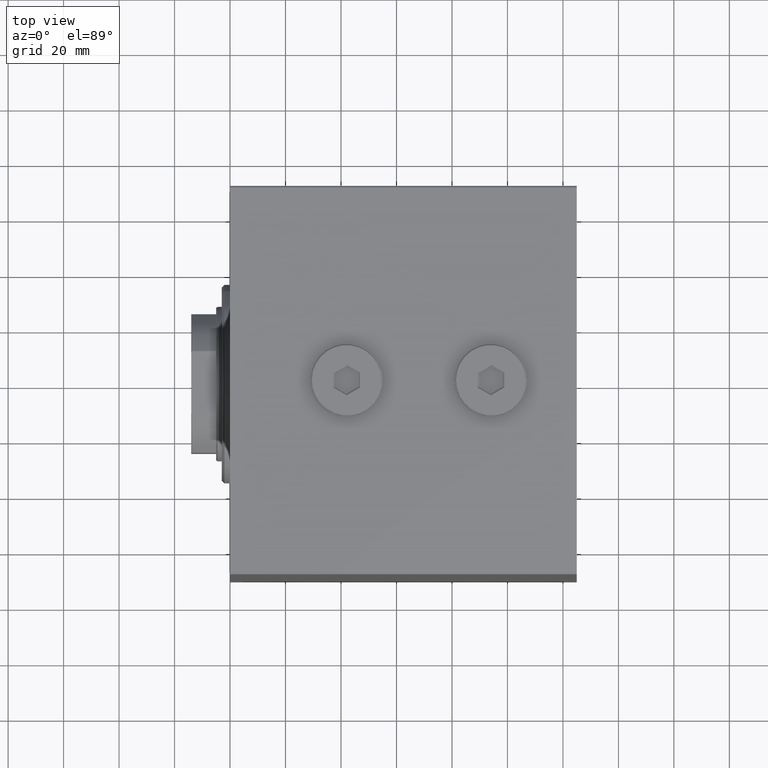
[diagram: clean part render]
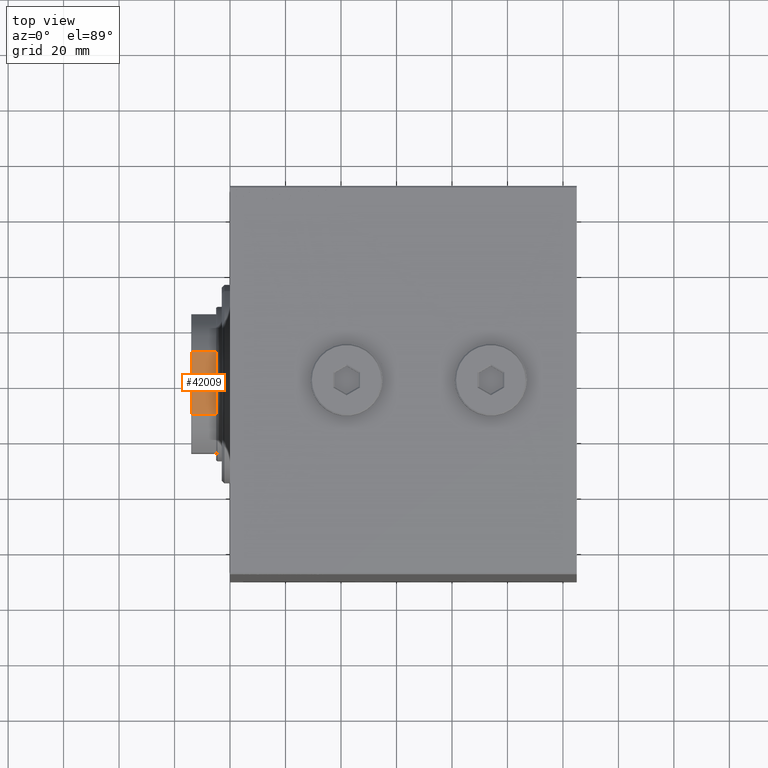
[diagram: same view with one face highlighted and labeled with its STEP entity id]
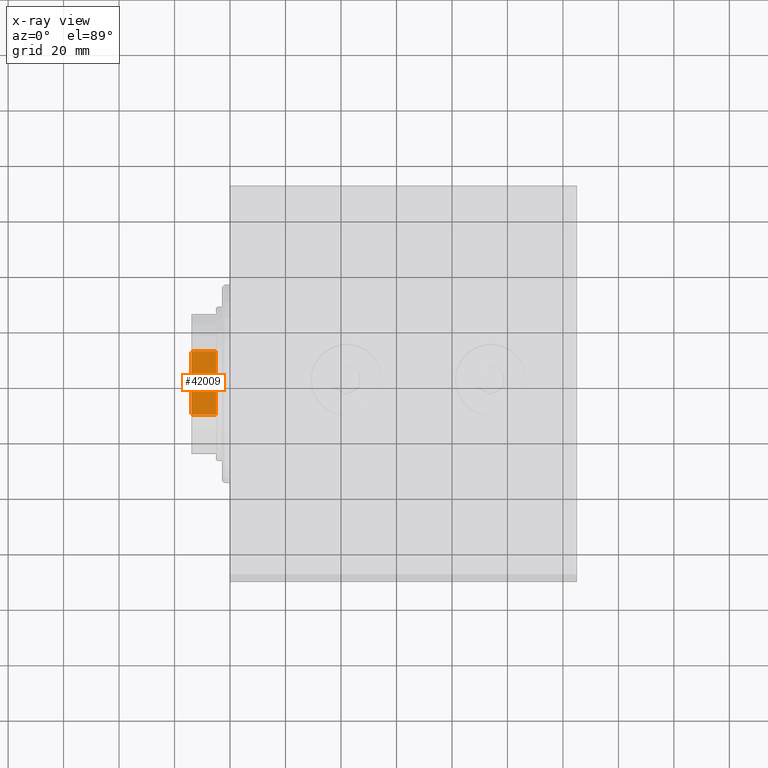
[diagram: x-ray of the same camera — body ghosted, the highlighted face saturated]
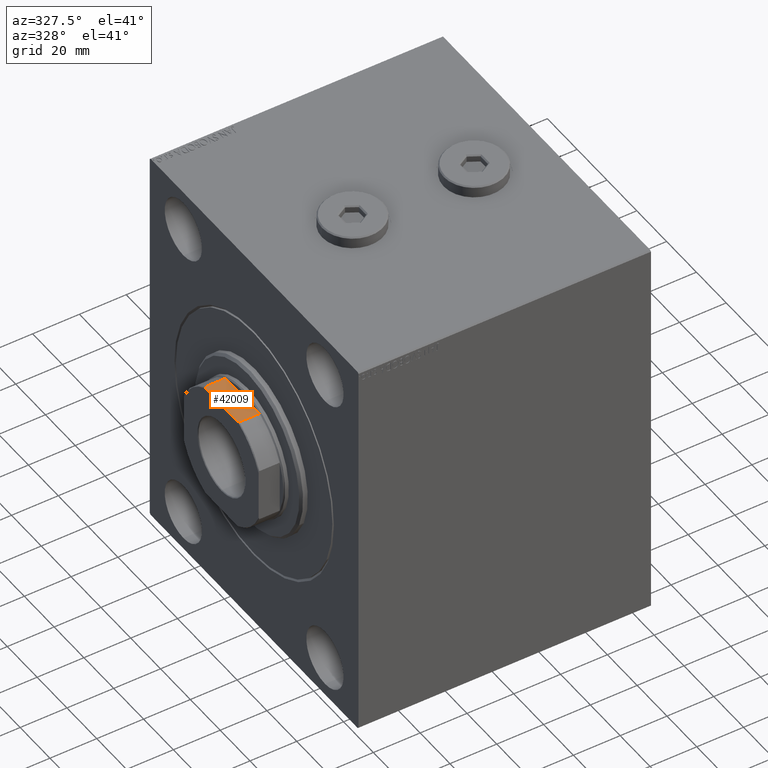
[diagram: same view with one face highlighted and labeled with its STEP entity id]
A machine part, top view. The second image highlights one B-rep face of the part: STEP entity #42009.
The next image is the same camera in x-ray: the body ghosted, the highlighted face saturated — about 0% of this face is hidden behind the body in this view.
A second angle (auxiliary view) of the same face is appended — the face is thin or edge-on in the first view.
In plain terms, the highlighted planar face has unit normal (-0, -0, -1).
Its self-contained STEP definition (entity closure, byte-faithful):
#154 = VECTOR ( 'NONE', #33292, 1000.000000000000000 ) ;
#178 = CARTESIAN_POINT ( 'NONE',  ( 24.99999999999999289, -11.45643923738961689, 64.70000000000000284 ) ) ;
#2418 = DIRECTION ( 'NONE',  ( -1.000000000000000000, -6.938893903907228378E-17, 0.000000000000000000 ) ) ;
#2845 = ORIENTED_EDGE ( 'NONE', *, *, #32141, .F. ) ;
#3743 = DIRECTION ( 'NONE',  ( -6.938893903907228378E-17, 1.000000000000000000, -0.000000000000000000 ) ) ;
#6303 = PLANE ( 'NONE',  #44744 ) ;
#6441 = ORIENTED_EDGE ( 'NONE', *, *, #10282, .T. ) ;
#7481 = CARTESIAN_POINT ( 'NONE',  ( 24.99999999999999645, 11.21071381544325973, 64.80236866784038341 ) ) ;
#8899 = CARTESIAN_POINT ( 'NONE',  ( 24.99999999999999289, -11.45643923738961689, 64.70000000000000284 ) ) ;
#10282 = EDGE_CURVE ( 'NONE', #32892, #20062, #23945, .T. ) ;
#11677 = VERTEX_POINT ( 'NONE', #17439 ) ;
#11913 = ORIENTED_EDGE ( 'NONE', *, *, #24228, .T. ) ;
#12080 = CARTESIAN_POINT ( 'NONE',  ( 24.99999999999999645, 11.45643923738960623, -0.001000000000001000089 ) ) ;
#12245 = B_SPLINE_CURVE_WITH_KNOTS ( 'NONE', 3,
 ( #31400, #37550, #30722, #178 ),
 .UNSPECIFIED., .F., .F.,
 ( 4, 4 ),
 ( 1.734723475976807094E-18, 0.0007985880942733605261 ),
 .UNSPECIFIED. ) ;
#12529 = VERTEX_POINT ( 'NONE', #41347 ) ;
#13735 = ORIENTED_EDGE ( 'NONE', *, *, #16680, .F. ) ;
#15579 = CARTESIAN_POINT ( 'NONE',  ( 24.99999999999999645, 11.45643923738960623, 56.00000000000000000 ) ) ;
#16680 = EDGE_CURVE ( 'NONE', #11677, #20062, #35162, .T. ) ;
#17175 = EDGE_LOOP ( 'NONE', ( #24026, #6441, #13735, #34981, #2845, #11913 ) ) ;
#17439 = CARTESIAN_POINT ( 'NONE',  ( 25.00000000000000000, -10.71634265969507638, 64.99999999999998579 ) ) ;
#20062 = VERTEX_POINT ( 'NONE', #34005 ) ;
#22579 = LINE ( 'NONE', #29645, #33701 ) ;
#23390 = CARTESIAN_POINT ( 'NONE',  ( 24.99999999999999645, 25.00000000000000355, 64.99999999999998579 ) ) ;
#23945 = B_SPLINE_CURVE_WITH_KNOTS ( 'NONE', 3,
 ( #38687, #7481, #43674, #25477 ),
 .UNSPECIFIED., .F., .F.,
 ( 4, 4 ),
 ( 0.000000000000000000, 0.0007985880942733247475 ),
 .UNSPECIFIED. ) ;
#24026 = ORIENTED_EDGE ( 'NONE', *, *, #24783, .T. ) ;
#24228 = EDGE_CURVE ( 'NONE', #12529, #25212, #34971, .T. ) ;
#24783 = EDGE_CURVE ( 'NONE', #25212, #32892, #36029, .T. ) ;
#25212 = VERTEX_POINT ( 'NONE', #15579 ) ;
#25477 = CARTESIAN_POINT ( 'NONE',  ( 25.00000000000000000, 10.71634265969510658, 64.99999999999998579 ) ) ;
#26247 = VECTOR ( 'NONE', #31304, 1000.000000000000000 ) ;
#26276 = CARTESIAN_POINT ( 'NONE',  ( 24.99999999999999645, 11.45643923738960623, 64.70000000000000284 ) ) ;
#27045 = DIRECTION ( 'NONE',  ( 6.938893903907228378E-17, -1.000000000000000000, 0.000000000000000000 ) ) ;
#27806 = VECTOR ( 'NONE', #3743, 1000.000000000000000 ) ;
#28109 = CARTESIAN_POINT ( 'NONE',  ( 24.99999999999999645, 25.00000000000000355, 64.99999999999998579 ) ) ;
#29645 = CARTESIAN_POINT ( 'NONE',  ( 24.99999999999999289, -11.45643923738961689, -0.001000000000001000089 ) ) ;
#30467 = FACE_OUTER_BOUND ( 'NONE', #17175, .T. ) ;
#30722 = CARTESIAN_POINT ( 'NONE',  ( 25.00000000000000000, -11.21071381544325263, 64.80236866784036920 ) ) ;
#31304 = DIRECTION ( 'NONE',  ( -6.938893903907228378E-17, 1.000000000000000000, -0.000000000000000000 ) ) ;
#31400 = CARTESIAN_POINT ( 'NONE',  ( 25.00000000000000000, -10.71634265969507638, 64.99999999999998579 ) ) ;
#32141 = EDGE_CURVE ( 'NONE', #12529, #34965, #22579, .T. ) ;
#32892 = VERTEX_POINT ( 'NONE', #26276 ) ;
#33292 = DIRECTION ( 'NONE',  ( -0.000000000000000000, -0.000000000000000000, 1.000000000000000000 ) ) ;
#33701 = VECTOR ( 'NONE', #43523, 1000.000000000000000 ) ;
#34005 = CARTESIAN_POINT ( 'NONE',  ( 25.00000000000000000, 10.71634265969510658, 64.99999999999998579 ) ) ;
#34965 = VERTEX_POINT ( 'NONE', #8899 ) ;
#34971 = LINE ( 'NONE', #35410, #27806 ) ;
#34981 = ORIENTED_EDGE ( 'NONE', *, *, #39957, .T. ) ;
#35162 = LINE ( 'NONE', #28109, #26247 ) ;
#35410 = CARTESIAN_POINT ( 'NONE',  ( 24.99999999999999645, 25.00000000000000355, 55.99999999999999289 ) ) ;
#36029 = LINE ( 'NONE', #12080, #154 ) ;
#37550 = CARTESIAN_POINT ( 'NONE',  ( 25.00000000000000000, -10.96400998265873916, 64.90242323902617727 ) ) ;
#38687 = CARTESIAN_POINT ( 'NONE',  ( 24.99999999999999645, 11.45643923738960623, 64.70000000000000284 ) ) ;
#39957 = EDGE_CURVE ( 'NONE', #11677, #34965, #12245, .T. ) ;
#41347 = CARTESIAN_POINT ( 'NONE',  ( 24.99999999999999289, -11.45643923738961689, 56.00000000000000000 ) ) ;
#42009 = ADVANCED_FACE ( 'NONE', ( #30467 ), #6303, .F. ) ;
#43523 = DIRECTION ( 'NONE',  ( -0.000000000000000000, -0.000000000000000000, 1.000000000000000000 ) ) ;
#43674 = CARTESIAN_POINT ( 'NONE',  ( 24.99999999999999645, 10.96400998265875337, 64.90242323902617727 ) ) ;
#44744 = AXIS2_PLACEMENT_3D ( 'NONE', #23390, #2418, #27045 ) ;